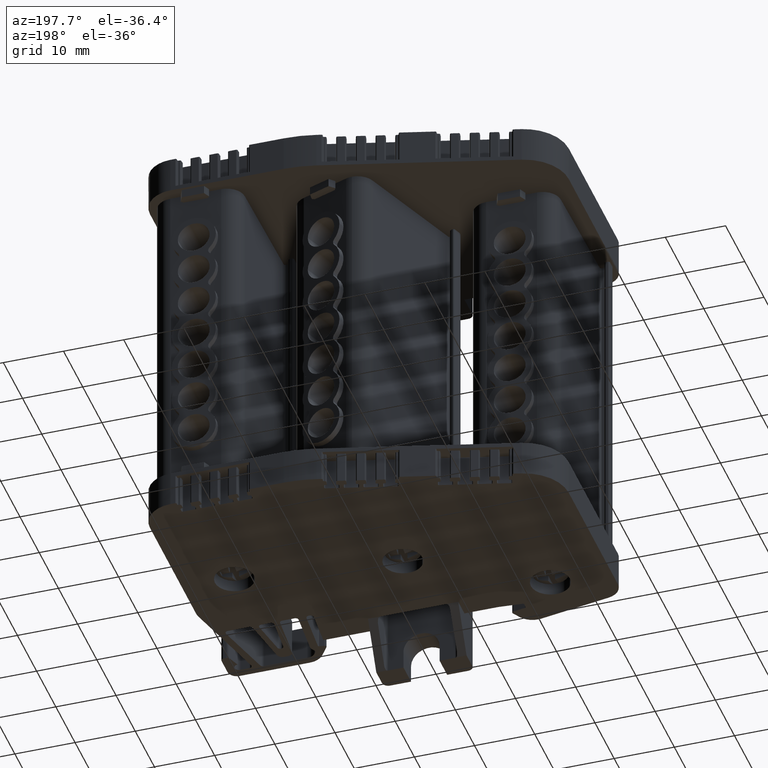
[diagram: clean part render]
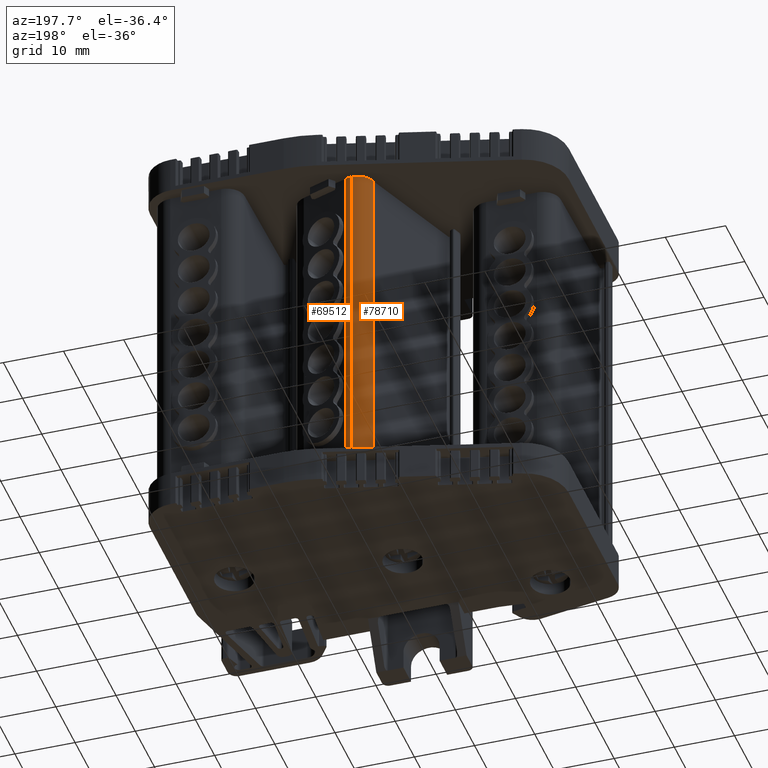
[diagram: same view with one multi-face feature highlighted, each face labeled with its STEP entity id]
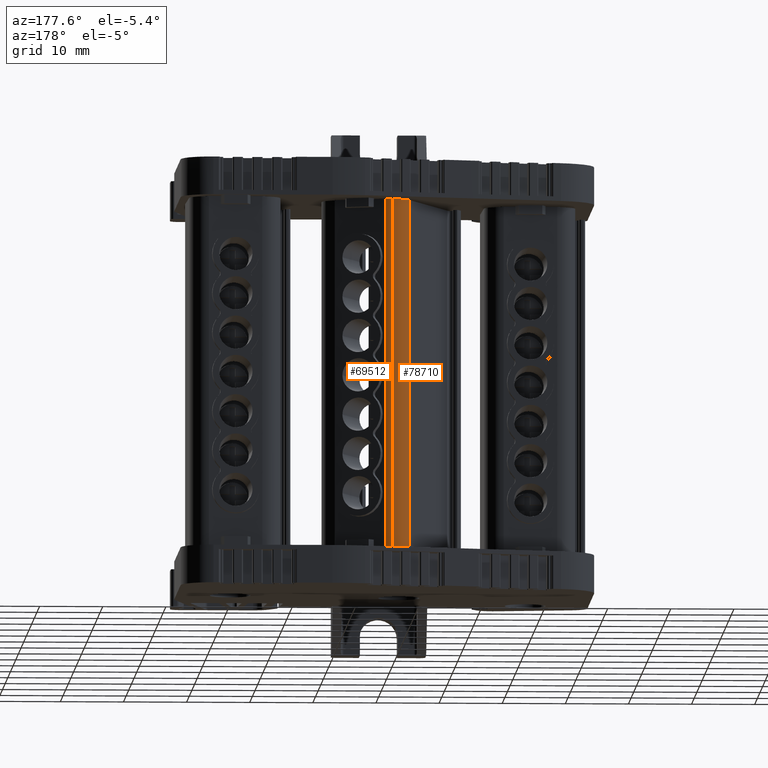
[diagram: same view with one multi-face feature highlighted, each face labeled with its STEP entity id]
A machine part, auxiliary view. The highlighted faces form ONE feature: a constant-radius fillet chain: 2 tangent blend faces with common blend radius 3.0101 mm. The faces share edges in the B-rep.
A second angle (auxiliary view) of the same feature is appended — it is thin or edge-on in the first view.
Their STEP definitions:
[1] entity #69512 (Cylinder):
#6170 = DIRECTION ( 'NONE',  ( 2.409160410806523000E-013, 1.421987441792169700E-012, -1.000000000000000000 ) ) ;
#6173 = FACE_OUTER_BOUND ( 'NONE', #87981, .T. ) ;
#6181 = CARTESIAN_POINT ( 'NONE',  ( -298.4317294013217200, 225.9803833805342200, 195.0972931822411200 ) ) ;
#6200 = CYLINDRICAL_SURFACE ( 'NONE', #23770, 3.010083036540378600 ) ;
#6206 = DIRECTION ( 'NONE',  ( 0.0000000000000000000, 1.000000000000000000, 1.420013532158090200E-012 ) ) ;
#11121 = VERTEX_POINT ( 'NONE', #60359 ) ;
#11313 = VERTEX_POINT ( 'NONE', #63682 ) ;
#12980 = VECTOR ( 'NONE', #82943, 1000.000000000000000 ) ;
#23770 = AXIS2_PLACEMENT_3D ( 'NONE', #6181, #6170, #6206 ) ;
#34673 = EDGE_CURVE ( 'NONE', #89460, #89336, #82973, .T. ) ;
#52026 = CARTESIAN_POINT ( 'NONE',  ( -298.4317294012855100, 225.9803833807482100, 44.61293318654807600 ) ) ;
#52028 = DIRECTION ( 'NONE',  ( -4.851985328069989300E-013, -1.333076162842165400E-012, 1.000000000000000000 ) ) ;
#52093 = DIRECTION ( 'NONE',  ( -1.106504051032278100E-013, 1.000000000000000000, 1.422318748931074100E-012 ) ) ;
#52095 = LINE ( 'NONE', #52097, #68979 ) ;
#52097 = CARTESIAN_POINT ( 'NONE',  ( -297.4022231998306400, 228.8089372279905000, 195.0972931822453200 ) ) ;
#52106 = DIRECTION ( 'NONE',  ( -2.409160410806523000E-013, -1.421987441792169700E-012, 1.000000000000000000 ) ) ;
#54005 = DIRECTION ( 'NONE',  ( 0.0000000000000000000, 1.000000000000000000, 1.420013532158090200E-012 ) ) ;
#54058 = CARTESIAN_POINT ( 'NONE',  ( -298.4317294012988700, 225.9803833806692200, 100.1622931822409600 ) ) ;
#54081 = DIRECTION ( 'NONE',  ( 2.409160410806523000E-013, 1.421987441792169700E-012, -1.000000000000000000 ) ) ;
#54953 = CARTESIAN_POINT ( 'NONE',  ( -298.4317294012921600, 228.9904664172885900, 44.61293318655235400 ) ) ;
#54985 = CARTESIAN_POINT ( 'NONE',  ( -298.4317294012921600, 228.9904664172096000, 100.1622931822452400 ) ) ;
#60359 = CARTESIAN_POINT ( 'NONE',  ( -297.4022231997810800, 228.8089372281158100, 100.1622931822452100 ) ) ;
#63682 = CARTESIAN_POINT ( 'NONE',  ( -297.4022231997609500, 228.8089372281923500, 44.61293318655237500 ) ) ;
#68949 = CIRCLE ( 'NONE', #68958, 3.010083036540378600 ) ;
#68958 = AXIS2_PLACEMENT_3D ( 'NONE', #52026, #52106, #52093 ) ;
#68979 = VECTOR ( 'NONE', #52028, 1000.000000000000000 ) ;
#69084 = CIRCLE ( 'NONE', #69092, 3.010083036540378600 ) ;
#69092 = AXIS2_PLACEMENT_3D ( 'NONE', #54058, #54081, #54005 ) ;
#69512 = ADVANCED_FACE ( 'NONE', ( #6173 ), #6200, .T. ) ;
#73880 = ORIENTED_EDGE ( 'NONE', *, *, #34673, .F. ) ;
#73882 = ORIENTED_EDGE ( 'NONE', *, *, #78809, .T. ) ;
#73937 = ORIENTED_EDGE ( 'NONE', *, *, #78612, .F. ) ;
#76965 = ORIENTED_EDGE ( 'NONE', *, *, #78608, .T. ) ;
#78608 = EDGE_CURVE ( 'NONE', #11313, #89336, #68949, .T. ) ;
#78612 = EDGE_CURVE ( 'NONE', #11313, #11121, #52095, .T. ) ;
#78809 = EDGE_CURVE ( 'NONE', #89460, #11121, #69084, .T. ) ;
#82929 = CARTESIAN_POINT ( 'NONE',  ( -298.4317294013217200, 228.9904664170746000, 195.0972931822453800 ) ) ;
#82943 = DIRECTION ( 'NONE',  ( 2.409160410806523000E-013, 1.421987441792169700E-012, -1.000000000000000000 ) ) ;
#82973 = LINE ( 'NONE', #82929, #12980 ) ;
#87981 = EDGE_LOOP ( 'NONE', ( #73880, #73882, #73937, #76965 ) ) ;
#89336 = VERTEX_POINT ( 'NONE', #54953 ) ;
#89460 = VERTEX_POINT ( 'NONE', #54985 ) ;
[2] entity #78710 (Cylinder):
#12194 = ORIENTED_EDGE ( 'NONE', *, *, #34744, .T. ) ;
#12237 = ORIENTED_EDGE ( 'NONE', *, *, #34673, .T. ) ;
#12239 = ORIENTED_EDGE ( 'NONE', *, *, #34703, .T. ) ;
#12283 = ORIENTED_EDGE ( 'NONE', *, *, #35205, .F. ) ;
#12980 = VECTOR ( 'NONE', #82943, 1000.000000000000000 ) ;
#13052 = CIRCLE ( 'NONE', #13056, 3.010083036540378600 ) ;
#13056 = AXIS2_PLACEMENT_3D ( 'NONE', #83051, #83076, #83088 ) ;
#13246 = CIRCLE ( 'NONE', #13253, 3.010083036540378600 ) ;
#13253 = AXIS2_PLACEMENT_3D ( 'NONE', #83213, #83219, #83121 ) ;
#13895 = VECTOR ( 'NONE', #85201, 1000.000000000000000 ) ;
#34673 = EDGE_CURVE ( 'NONE', #89460, #89336, #82973, .T. ) ;
#34703 = EDGE_CURVE ( 'NONE', #89336, #89469, #13052, .T. ) ;
#34744 = EDGE_CURVE ( 'NONE', #89374, #89460, #13246, .T. ) ;
#35205 = EDGE_CURVE ( 'NONE', #89374, #89469, #85250, .T. ) ;
#52730 = CARTESIAN_POINT ( 'NONE',  ( -298.4317294013217200, 225.9803833805342200, 195.0972931822411200 ) ) ;
#52746 = DIRECTION ( 'NONE',  ( 0.0000000000000000000, 1.000000000000000000, 1.420013532158090200E-012 ) ) ;
#52779 = DIRECTION ( 'NONE',  ( 2.409160410806523000E-013, 1.421987441792169700E-012, -1.000000000000000000 ) ) ;
#52789 = FACE_OUTER_BOUND ( 'NONE', #76085, .T. ) ;
#52796 = CYLINDRICAL_SURFACE ( 'NONE', #69015, 3.010083036540378600 ) ;
#54953 = CARTESIAN_POINT ( 'NONE',  ( -298.4317294012921600, 228.9904664172885900, 44.61293318655235400 ) ) ;
#54985 = CARTESIAN_POINT ( 'NONE',  ( -298.4317294012921600, 228.9904664172096000, 100.1622931822452400 ) ) ;
#54986 = CARTESIAN_POINT ( 'NONE',  ( -301.2801622101691200, 226.9535382605857900, 44.61293318655064200 ) ) ;
#54991 = CARTESIAN_POINT ( 'NONE',  ( -301.2801622101681600, 226.9535382605441500, 100.1622931822282500 ) ) ;
#69015 = AXIS2_PLACEMENT_3D ( 'NONE', #52730, #52779, #52746 ) ;
#76085 = EDGE_LOOP ( 'NONE', ( #12194, #12237, #12239, #12283 ) ) ;
#78710 = ADVANCED_FACE ( 'NONE', ( #52789 ), #52796, .T. ) ;
#82929 = CARTESIAN_POINT ( 'NONE',  ( -298.4317294013217200, 228.9904664170746000, 195.0972931822453800 ) ) ;
#82943 = DIRECTION ( 'NONE',  ( 2.409160410806523000E-013, 1.421987441792169700E-012, -1.000000000000000000 ) ) ;
#82973 = LINE ( 'NONE', #82929, #12980 ) ;
#83051 = CARTESIAN_POINT ( 'NONE',  ( -298.4317294012855100, 225.9803833807482100, 44.61293318654807600 ) ) ;
#83076 = DIRECTION ( 'NONE',  ( -2.409160410806523000E-013, -1.421987441792169700E-012, 1.000000000000000000 ) ) ;
#83088 = DIRECTION ( 'NONE',  ( 0.0000000000000000000, 1.000000000000000000, 1.422318748931074100E-012 ) ) ;
#83121 = DIRECTION ( 'NONE',  ( 0.0000000000000000000, 1.000000000000000000, 1.420013532158090200E-012 ) ) ;
#83213 = CARTESIAN_POINT ( 'NONE',  ( -298.4317294012988700, 225.9803833806692200, 100.1622931822409600 ) ) ;
#83219 = DIRECTION ( 'NONE',  ( 2.409160410806523000E-013, 1.421987441792169700E-012, -1.000000000000000000 ) ) ;
#85193 = CARTESIAN_POINT ( 'NONE',  ( -301.2801622101425200, 226.9535382605355400, 195.0972931822147400 ) ) ;
#85201 = DIRECTION ( 'NONE',  ( -2.657706657969097000E-013, 1.020194950733769300E-013, -1.000000000000000000 ) ) ;
#85250 = LINE ( 'NONE', #85193, #13895 ) ;
#89336 = VERTEX_POINT ( 'NONE', #54953 ) ;
#89374 = VERTEX_POINT ( 'NONE', #54991 ) ;
#89460 = VERTEX_POINT ( 'NONE', #54985 ) ;
#89469 = VERTEX_POINT ( 'NONE', #54986 ) ;